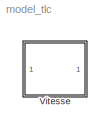
MODEL model_tlc
KIND model
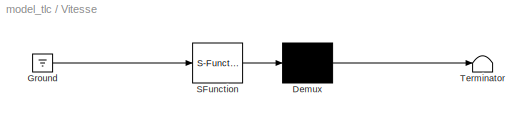
BLOCK [SubSystem] Vitesse
  FunctionWithSeparateData = off
  MaskDescription = Stateflow diagram
  MaskDisplay = plot(sf('Private','sfblk','xIcon'),sf('Private','sfblk','yIcon'));text(0.5,0,sf('Private', 'sfblk', 'tIcon'),'HorizontalAl','Center','VerticalAl','Bottom');
  MaskHideContents = off
  MaskIconFrame = off
  MaskIconOpaque = on
  MaskIconRotate = none
  MaskIconUnits = autoscale
  MaskPortRotate = default
  MaskSelfModifiable = on
  MaskType = Stateflow
  MinAlgLoopOccurrences = off
  Opaque = off
  PermitHierarchicalResolution = ExplicitOnly
  Ports = []
  PropExecContextOutsideSubsystem = off
  RTWSystemCode = Auto
  RequestExecContextInheritance = off
  SID = 2
  TreatAsAtomicUnit = on
BLOCK [Demux] Vitesse/ Demux 
  Outputs = 1
  Ports = [1, 1]
  SID = 14
BLOCK [Ground] Vitesse/ Ground 
  SID = 15
BLOCK [S-Function] Vitesse/ SFunction 
  EnableBusSupport = on
  FunctionName = sf_sfun
  PortCounts = [1 1]
  Ports = [1, 1]
  SID = 13
  Tag = Stateflow S-Function model_tlc 2
BLOCK [Terminator] Vitesse/ Terminator 
  SID = 19
LINE Vitesse/ Demux :1 -> Vitesse/ Terminator :1
LINE Vitesse/ Ground :1 -> Vitesse/ SFunction :1
LINE Vitesse/ SFunction :1 -> Vitesse/ Demux :1
CHART Vitesse states=2 transitions=3
  STATE_LABEL 'lent'
  STATE_LABEL 'rapide'
